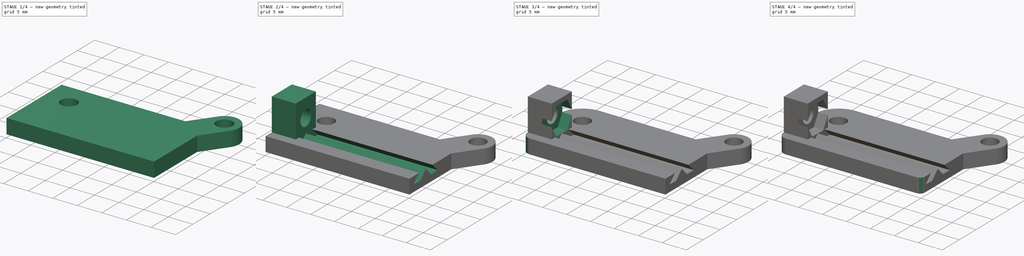
[diagram: build sequence overview — one tinted view per stage of 4, left to right]
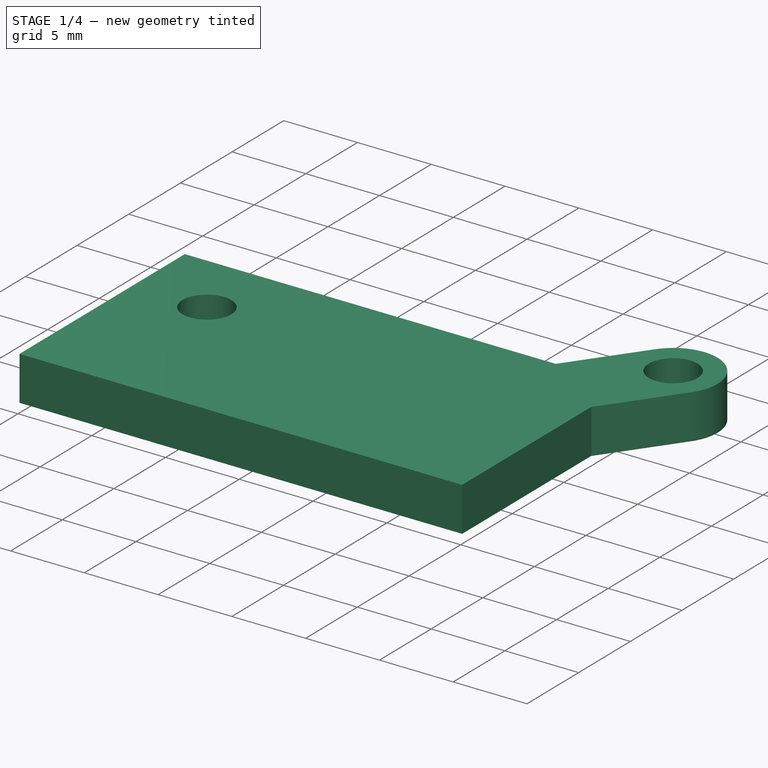
[diagram: stage 1 of 4 — iso view after this stage's code; geometry added in this stage tinted green]
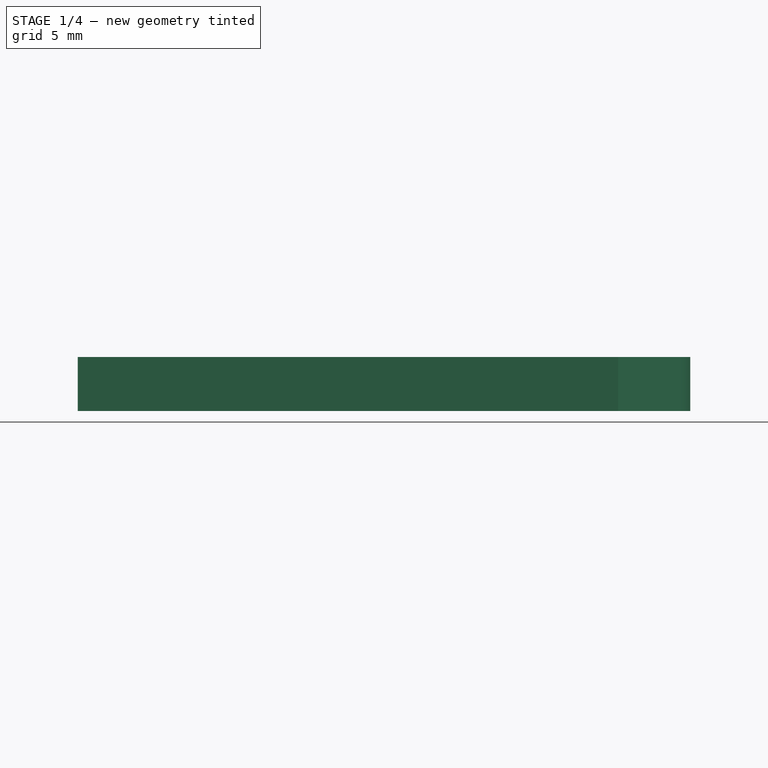
[diagram: stage 1 of 4 — front view after this stage's code; geometry added in this stage tinted green]
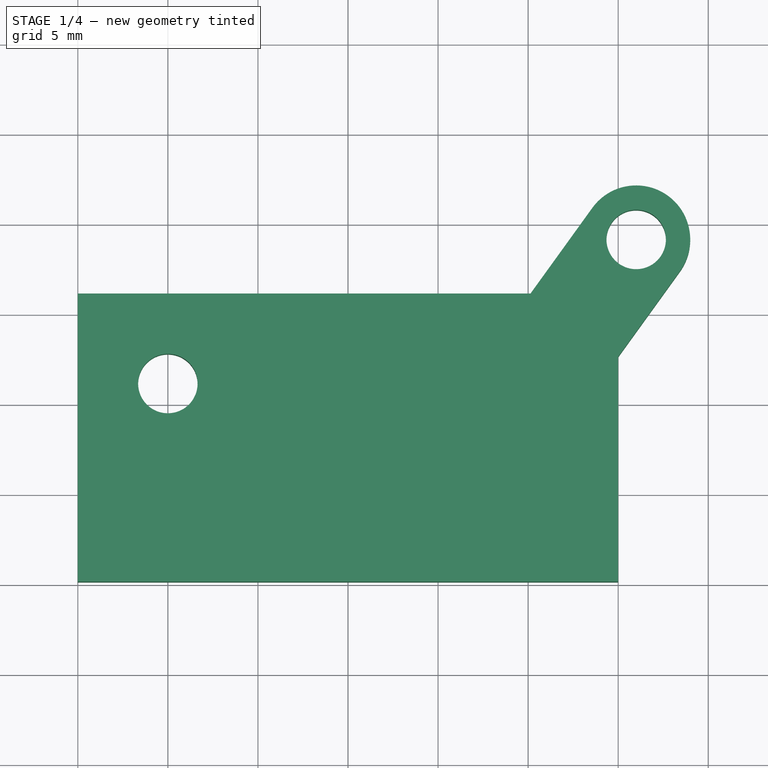
[diagram: stage 1 of 4 — top view after this stage's code; geometry added in this stage tinted green]
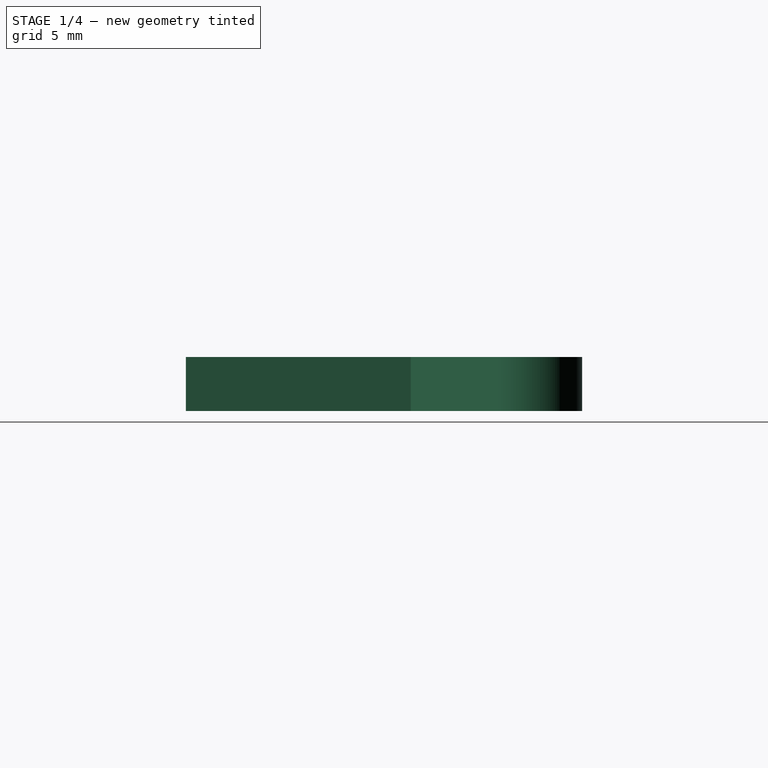
[diagram: stage 1 of 4 — right view after this stage's code; geometry added in this stage tinted green]
FCSTD DOCUMENT  (FreeCAD 0.18R15441 (Git))
Label: ZEndstopClip1
License: All rights reserved
LicenseURL: http://en.wikipedia.org/wiki/All_rights_reserved
objects: Sketcher::SketchObject×6, PartDesign::Pad×3, PartDesign::Pocket×3, PartDesign::Fillet×3, PartDesign::Body×1, Part::FeaturePython×1, App::Part×1
note: 23 computed .brp shape members not serialized (recipe doc carries the construction recipe); baked Part::Feature solids carry a one-line shape summary decoded from their .brp

FEATURE [Sketcher::SketchObject] Sketch  label="BaseSketch1"
  MapMode = 5
  Support = -> [XY_Plane001]
  sketch-geometry (5):
    g0: LineSegment StartX=-5 StartY=11.15 StartZ=0 EndX=25 EndY=11.15 EndZ=0
    g1: LineSegment StartX=25 StartY=11.15 StartZ=0 EndX=25 EndY=-4.85 EndZ=0
    g2: LineSegment StartX=25 StartY=-4.85 StartZ=0 EndX=-5 EndY=-4.85 EndZ=0
    g3: LineSegment StartX=-5 StartY=-4.85 StartZ=0 EndX=-5 EndY=11.15 EndZ=0
    g4: Circle CenterX=0 CenterY=6.15 CenterZ=0 NormalX=0 NormalY=0 NormalZ=1 AngleXU=0 Radius=1.65
  constraints (15):
    c: Coincident(g0,g1)
    c: Coincident(g1,g2)
    c: Coincident(g2,g3)
    c: Coincident(g3,g0)
    c: Horizontal(g0)
    c: Horizontal(g2)
    c: Vertical(g1)
    c: Vertical(g3)
    c: PointOnObject(g4,g-2)
    c: Distance(g-1,g4) = 6.15
    c: Radius(g4) = 1.65
    c: Distance(g4,g3) = 5
    c: Distance(g4,g2) = 11
    c: Distance(g4,g0) = 5
    c: Distance(g0) = 30
FEATURE [Sketcher::SketchObject] Sketch001  label="BaseSketch2"
  ExternalGeometry = -> [Sketch]
  MapMode = 5
  Support = -> [XY_Plane001]
  sketch-geometry (6):
    g0: Circle CenterX=26 CenterY=14.15 CenterZ=0 NormalX=0 NormalY=0 NormalZ=1 AngleXU=0 Radius=1.65
    g1: ArcOfCircle CenterX=26 CenterY=14.15 CenterZ=0 NormalX=0 NormalY=0 NormalZ=1 AngleXU=0 Radius=3 StartAngle=5.658 EndAngle=8.79959
    g2: LineSegment StartX=23.5674 StartY=15.9057 StartZ=0 EndX=20.1349 EndY=11.15 EndZ=0
    g3: LineSegment StartX=28.4326 StartY=12.3943 StartZ=0 EndX=25 EndY=7.6385 EndZ=0
    g4: LineSegment StartX=20.1349 StartY=11.15 StartZ=0 EndX=25 EndY=7.6385 EndZ=0
    g5: LineSegment [constr] StartX=23.5674 StartY=15.9057 StartZ=0 EndX=28.4326 EndY=12.3943 EndZ=0
  constraints (17):
    c: Equal(g0,g-3)
    c: DistanceX(g-3,g0) = 26
    c: DistanceY(g-3,g0) = 8
    c: Coincident(g1,g0)
    c: Coincident(g2,g1)
    c: PointOnObject(g2,g-4)
    c: Coincident(g3,g1)
    c: PointOnObject(g3,g-5)
    c: Coincident(g4,g2)
    c: Coincident(g4,g3)
    c: Perpendicular(g3,g4)
    c: Parallel(g3,g2)
    c: Angle(g1) = 3.14159
    c: Coincident(g5,g1)
    c: Coincident(g5,g1)
    c: Parallel(g5,g4)
    c: Radius(g1) = 3
FEATURE [PartDesign::Pad] Pad  label="BasePad1"
  Length = 3
  Length2 = 100
  Profile = -> Sketch
  Reversed = true
  Type = 0
FEATURE [PartDesign::Pad] Pad001  label="BasePad2"
  BaseFeature = -> Pad
  Length = 3
  Length2 = 100
  Profile = -> Sketch001
  Reversed = true
  Type = 0
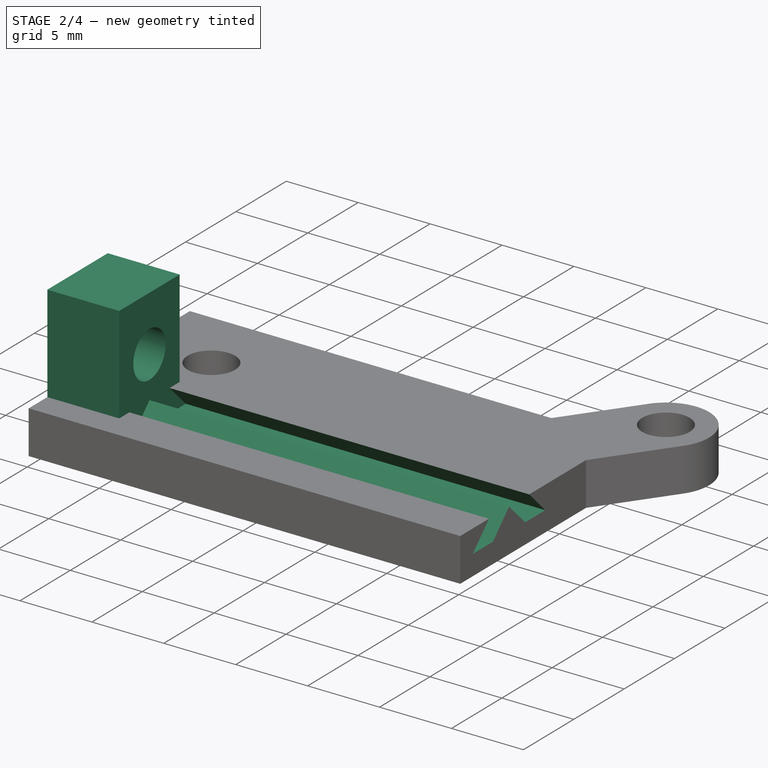
[diagram: stage 2 of 4 — iso view after this stage's code; geometry added in this stage tinted green]
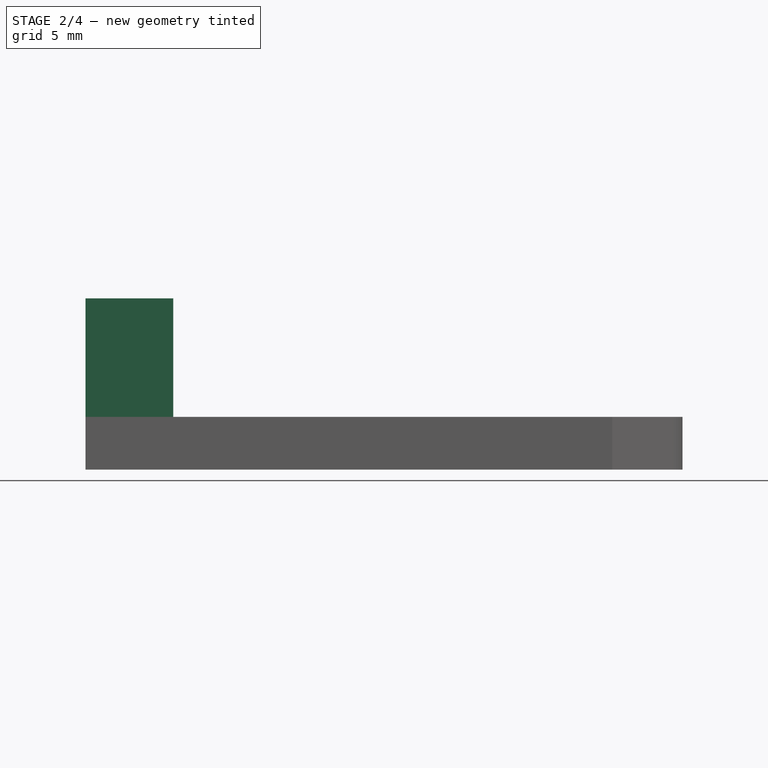
[diagram: stage 2 of 4 — front view after this stage's code; geometry added in this stage tinted green]
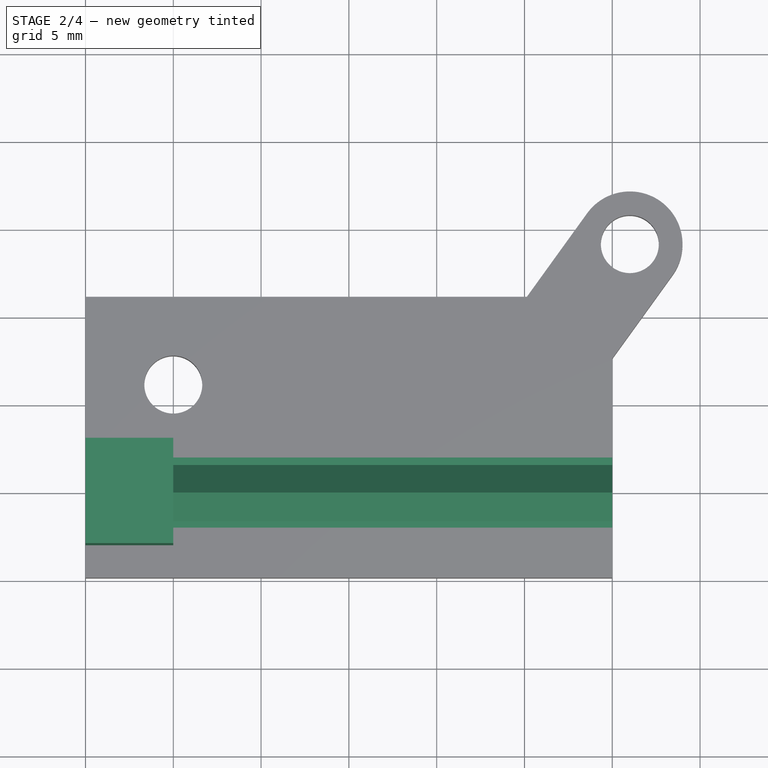
[diagram: stage 2 of 4 — top view after this stage's code; geometry added in this stage tinted green]
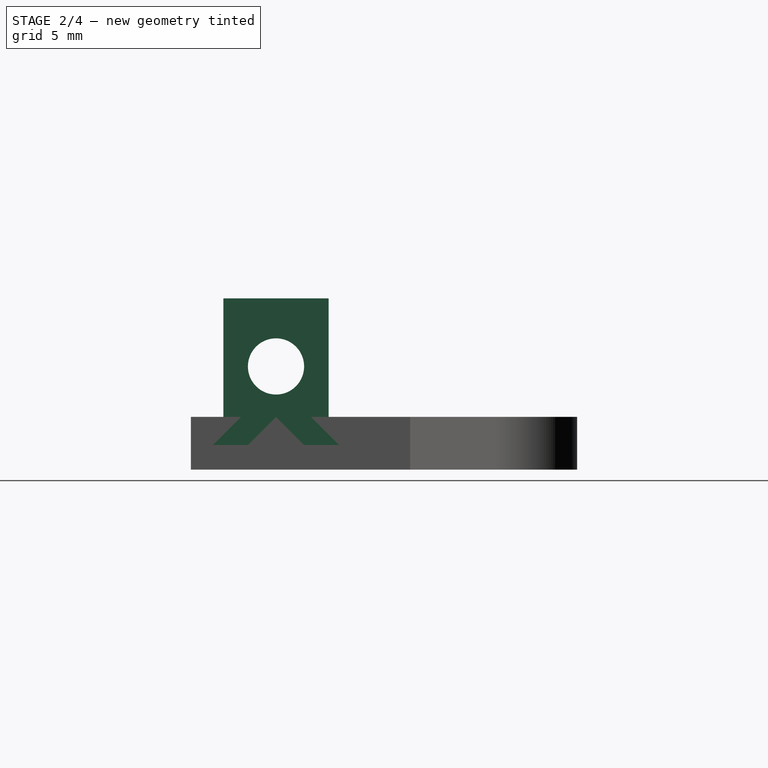
[diagram: stage 2 of 4 — right view after this stage's code; geometry added in this stage tinted green]
FEATURE [Sketcher::SketchObject] Sketch002  label="RailSketch"
  MapMode = 5
  Placement = pos=(0,0,0) rot=(0.57735,0.57735,0.57735;2.0944rad)
  Support = -> [YZ_Plane001]
  sketch-geometry (9):
    g0: LineSegment StartX=2 StartY=0 StartZ=0 EndX=2 EndY=1 EndZ=0
    g1: LineSegment StartX=2 StartY=1 StartZ=0 EndX=-2 EndY=1 EndZ=0
    g2: LineSegment StartX=-2 StartY=1 StartZ=0 EndX=-2 EndY=0 EndZ=0
    g3: LineSegment StartX=-2 StartY=0 StartZ=0 EndX=-3.6 EndY=-1.6 EndZ=0
    g4: LineSegment StartX=-3.6 StartY=-1.6 StartZ=0 EndX=-1.6 EndY=-1.6 EndZ=0
    g5: LineSegment StartX=-1.6 StartY=-1.6 StartZ=0 EndX=0 EndY=0 EndZ=0
    g6: LineSegment StartX=0 StartY=0 StartZ=0 EndX=1.6 EndY=-1.6 EndZ=0
    g7: LineSegment StartX=1.6 StartY=-1.6 StartZ=0 EndX=3.6 EndY=-1.6 EndZ=0
    g8: LineSegment StartX=3.6 StartY=-1.6 StartZ=0 EndX=2 EndY=0 EndZ=0
  constraints (24):
    c: Coincident(g0,g1)
    c: Coincident(g1,g2)
    c: Horizontal(g1)
    c: Vertical(g0)
    c: Vertical(g2)
    c: PointOnObject(g2,g-1)
    c: Symmetric(g2,g0,g-2)
    c: Distance(g2) = 1
    c: Distance(g1) = 4
    c: Coincident(g3,g2)
    c: Coincident(g4,g3)
    c: Horizontal(g4)
    c: Coincident(g5,g4)
    c: Coincident(g5,g-1)
    c: Coincident(g6,g5)
    c: Coincident(g7,g6)
    c: Horizontal(g7)
    c: Coincident(g8,g7)
    c: Coincident(g8,g0)
    c: Parallel(g8,g6)
    c: Parallel(g5,g3)
    c: Angle(g5,g6) = 1.5708
    c: Symmetric(g4,g6,g-2)
    c: Distance(g2,g4) = 1.6
FEATURE [PartDesign::Pocket] Pocket  label="RailPocket"
  BaseFeature = -> Pad001
  Length = 5
  Length2 = 100
  Profile = -> Sketch002
  Reversed = true
  Type = 1
FEATURE [Sketcher::SketchObject] Sketch003  label="NutStopSketch"
  MapMode = 5
  Placement = pos=(0,0,0) rot=(0.57735,0.57735,0.57735;2.0944rad)
  Support = -> [YZ_Plane001]
  sketch-geometry (4):
    g0: LineSegment StartX=-3 StartY=0 StartZ=0 EndX=3 EndY=0 EndZ=0
    g1: LineSegment StartX=3 StartY=0 StartZ=0 EndX=3 EndY=6.75 EndZ=0
    g2: LineSegment StartX=3 StartY=6.75 StartZ=0 EndX=-3 EndY=6.75 EndZ=0
    g3: LineSegment StartX=-3 StartY=6.75 StartZ=0 EndX=-3 EndY=0 EndZ=0
  constraints (11):
    c: Coincident(g0,g1)
    c: Coincident(g1,g2)
    c: Coincident(g2,g3)
    c: Coincident(g3,g0)
    c: Horizontal(g2)
    c: Vertical(g1)
    c: Vertical(g3)
    c: PointOnObject(g0,g-1)
    c: Symmetric(g0,g0,g-2)
    c: Distance(g2) = 6
    c: Distance(g3) = 6.75
FEATURE [PartDesign::Pad] Pad002  label="NutStopPad"
  BaseFeature = -> Pocket
  Length = 5
  Length2 = 100
  Profile = -> Sketch003
  Reversed = true
  Type = 0
FEATURE [Sketcher::SketchObject] Sketch004  label="ScrewHoleSketch"
  MapMode = 5
  Placement = pos=(0,0,0) rot=(0.57735,0.57735,0.57735;2.0944rad)
  Support = -> [YZ_Plane001]
  sketch-geometry (1):
    g0: Circle CenterX=0 CenterY=2.875 CenterZ=0 NormalX=0 NormalY=0 NormalZ=1 AngleXU=0 Radius=1.6
  constraints (3):
    c: PointOnObject(g0,g-2)
    c: Radius(g0) = 1.6
    c: DistanceY(g-1,g0) = 2.875
FEATURE [PartDesign::Pocket] Pocket001  label="ScrewHolePocket"
  BaseFeature = -> Pad002
  Length = 5
  Length2 = 100
  Profile = -> Sketch004
  Type = 1
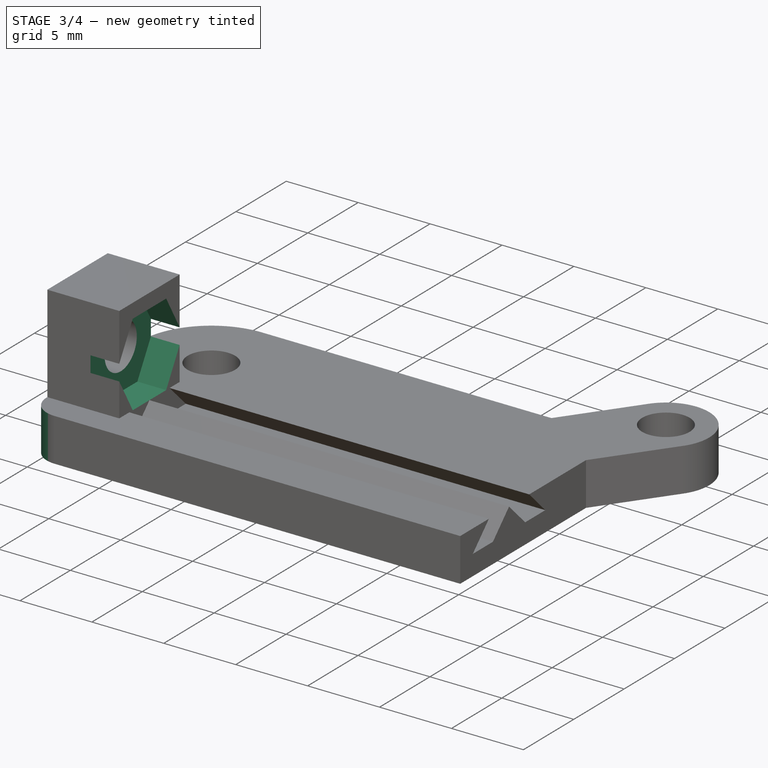
[diagram: stage 3 of 4 — iso view after this stage's code; geometry added in this stage tinted green]
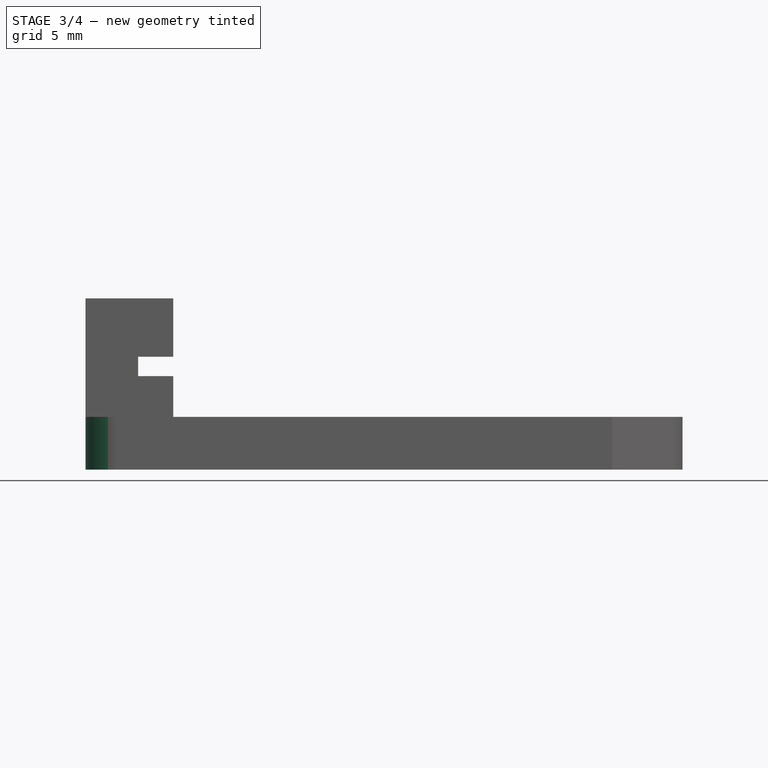
[diagram: stage 3 of 4 — front view after this stage's code; geometry added in this stage tinted green]
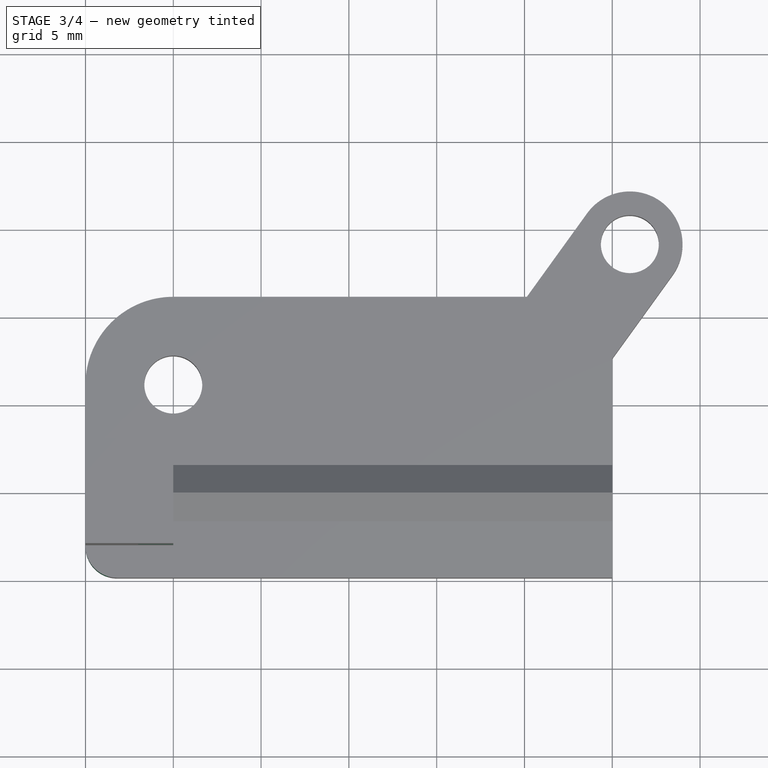
[diagram: stage 3 of 4 — top view after this stage's code; geometry added in this stage tinted green]
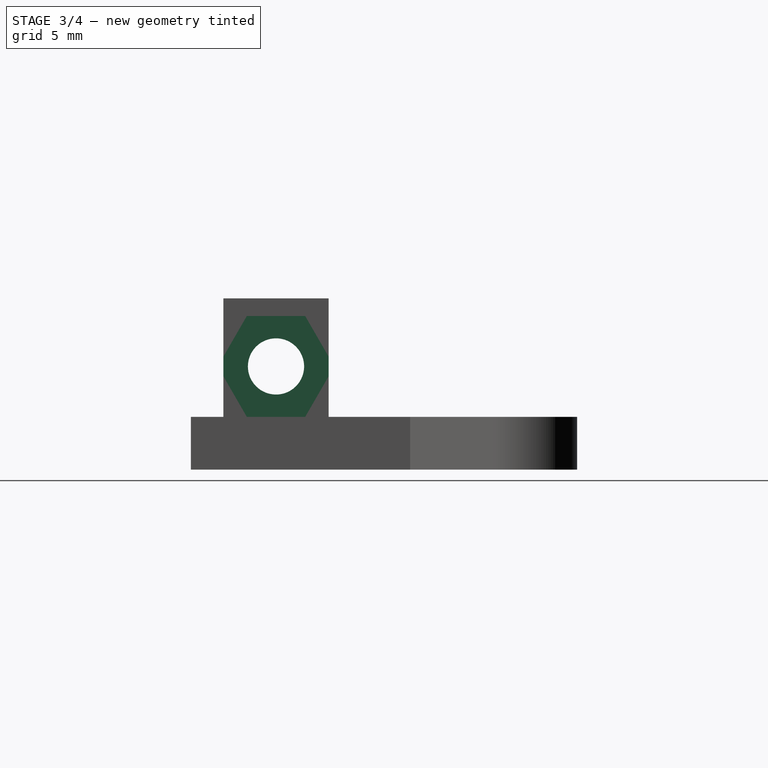
[diagram: stage 3 of 4 — right view after this stage's code; geometry added in this stage tinted green]
FEATURE [Sketcher::SketchObject] Sketch005  label="NutSketch"
  ExternalGeometry = -> [Sketch004]
  MapMode = 5
  Placement = pos=(0,0,0) rot=(0.57735,0.57735,0.57735;2.0944rad)
  Support = -> [YZ_Plane001]
  sketch-geometry (7):
    g0: LineSegment StartX=-3.31976 StartY=2.875 StartZ=0 EndX=-1.65988 EndY=2.2e-15 EndZ=0
    g1: LineSegment StartX=-1.65988 StartY=2.4e-15 StartZ=0 EndX=1.65988 EndY=-2.3e-15 EndZ=0
    g2: LineSegment StartX=1.65988 StartY=-2.3e-15 StartZ=0 EndX=3.31976 EndY=2.875 EndZ=0
    g3: LineSegment StartX=3.31976 StartY=2.875 StartZ=0 EndX=1.65988 EndY=5.75 EndZ=0
    g4: LineSegment StartX=1.65988 StartY=5.75 StartZ=0 EndX=-1.65988 EndY=5.75 EndZ=0
    g5: LineSegment StartX=-1.65988 StartY=5.75 StartZ=0 EndX=-3.31976 EndY=2.875 EndZ=0
    g6: Circle [constr] CenterX=3e-16 CenterY=2.875 CenterZ=0 NormalX=0 NormalY=0 NormalZ=1 AngleXU=0 Radius=3.31976
  constraints (16):
    c: Coincident(g0,g1)
    c: Coincident(g1,g2)
    c: Coincident(g2,g3)
    c: Coincident(g3,g4)
    c: Coincident(g4,g5)
    c: Coincident(g5,g0)
    c: Equal(g0, g1-g5) x5
    c: PointOnObject(g0,g6)
    c: PointOnObject(g1,g6)
    c: PointOnObject(g2,g6)
    c: PointOnObject(g3,g6)
    c: PointOnObject(g4,g6)
    c: PointOnObject(g5,g6)
    c: Coincident(g6,g-3)
    c: Horizontal(g4)
    c: Distance(g0,g4) = 5.75
FEATURE [PartDesign::Pocket] Pocket002  label="NutPocket"
  BaseFeature = -> Pocket001
  Length = 2
  Length2 = 100
  Profile = -> Sketch005
  Type = 0
FEATURE [PartDesign::Fillet] Fillet  label="CornersFillet1"
  Base = -> Pocket002 [Edge20]
  BaseFeature = -> Pocket002
  Radius = 1.8
FEATURE [PartDesign::Fillet] Fillet001  label="CornersFillet2"
  Base = -> Fillet [Edge12]
  BaseFeature = -> Fillet
  Radius = 5
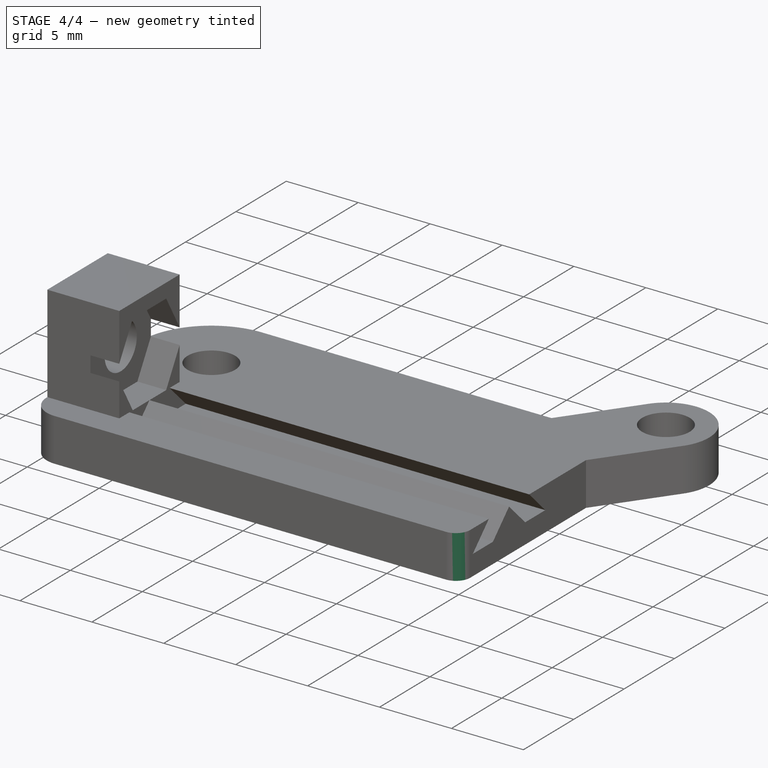
[diagram: stage 4 of 4 — iso view after this stage's code; geometry added in this stage tinted green]
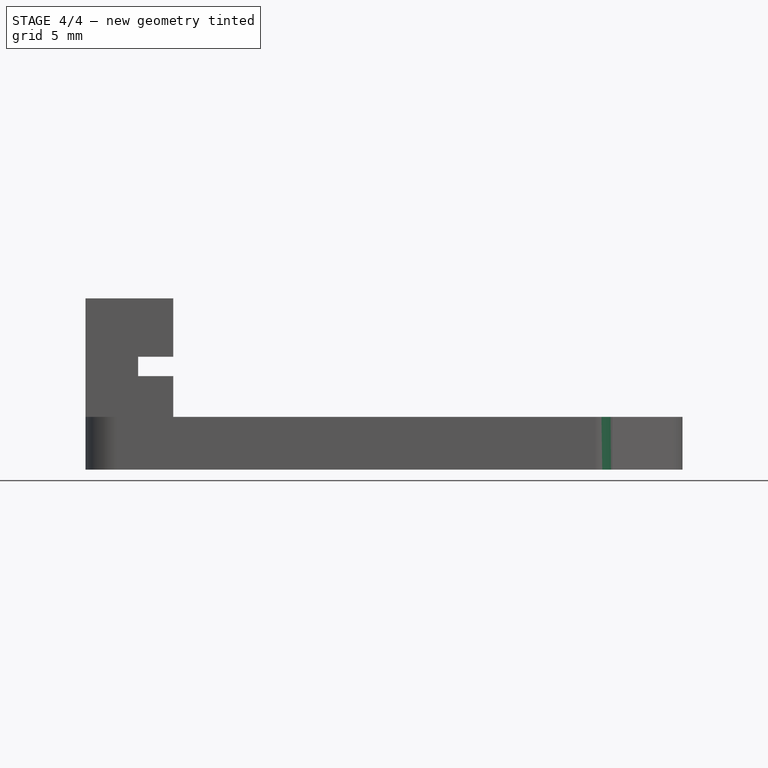
[diagram: stage 4 of 4 — front view after this stage's code; geometry added in this stage tinted green]
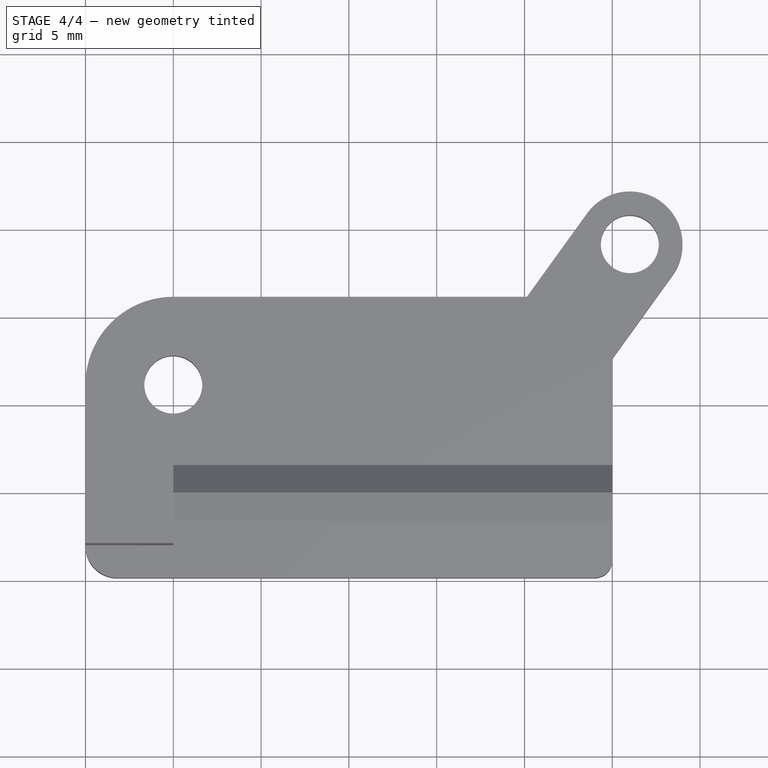
[diagram: stage 4 of 4 — top view after this stage's code; geometry added in this stage tinted green]
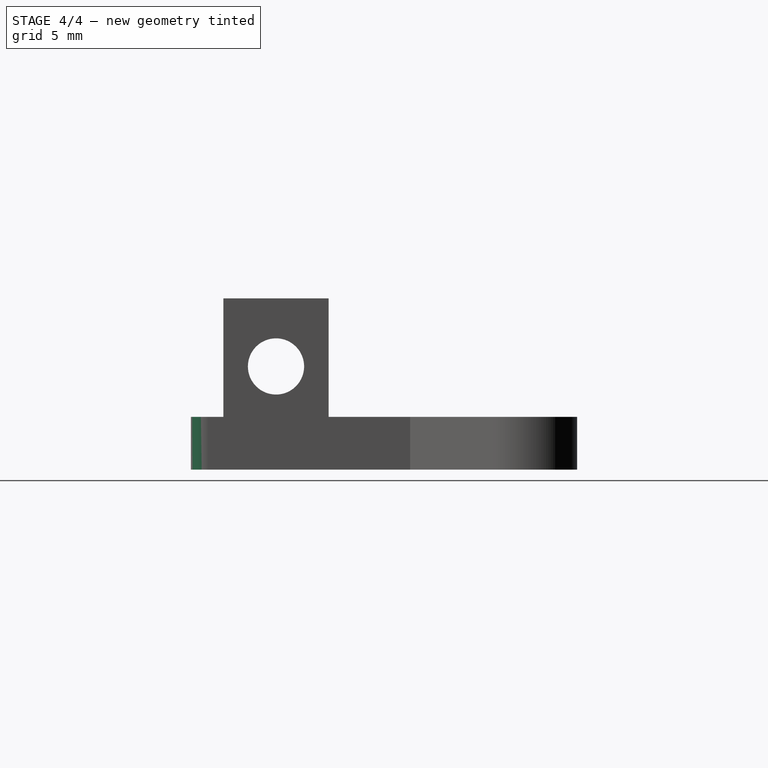
[diagram: stage 4 of 4 — right view after this stage's code; geometry added in this stage tinted green]
FEATURE [PartDesign::Fillet] Fillet002  label="CornersFillet3"
  Base = -> Fillet001 [Edge21]
  BaseFeature = -> Fillet001
  Radius = 1
FEATURE [PartDesign::Body] Body  label="ClipBody"
  Group = -> [Sketch,Sketch001,Pad,Pad001,Sketch002,Pocket,Sketch003,Pad002,Sketch004,Pocket001,Sketch005,Pocket002,Fillet,Fillet001,Fillet002]
  Origin = -> Origin001
  Tip = -> Fillet002
FEATURE [Part::FeaturePython] refine  label="ClipBody_Refined"  # WARN: FeaturePython — macro-defined, semantics opaque (R4)
  Base = -> Body
FEATURE [App::Part] Part  label="Clip1Part"
  Group = -> [Body,refine]
  License = CC BY 3.0
  LicenseURL = http://creativecommons.org/licenses/by/3.0/
  Origin = -> Origin
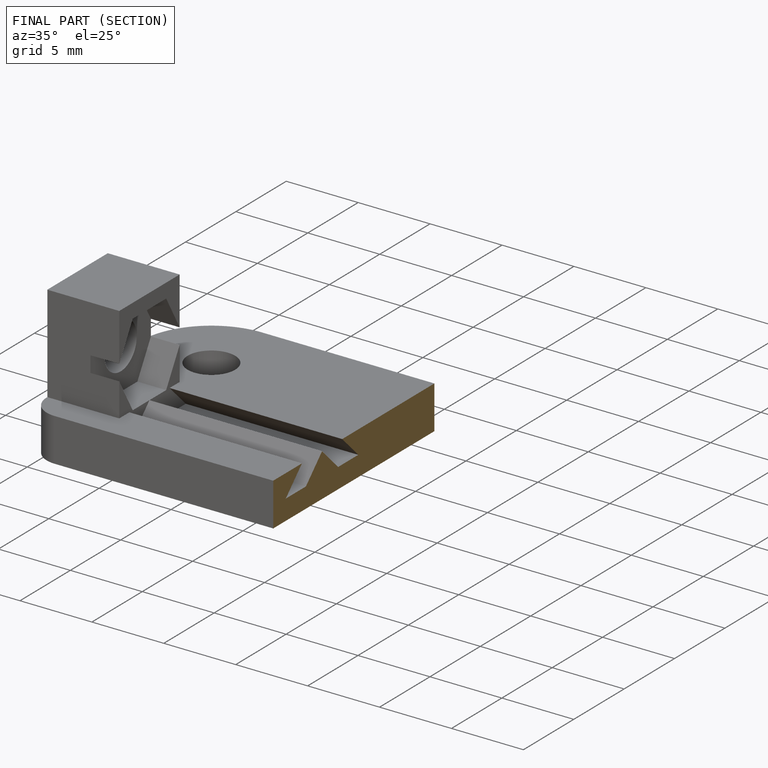
[diagram: finished part — half-section view (interior)]
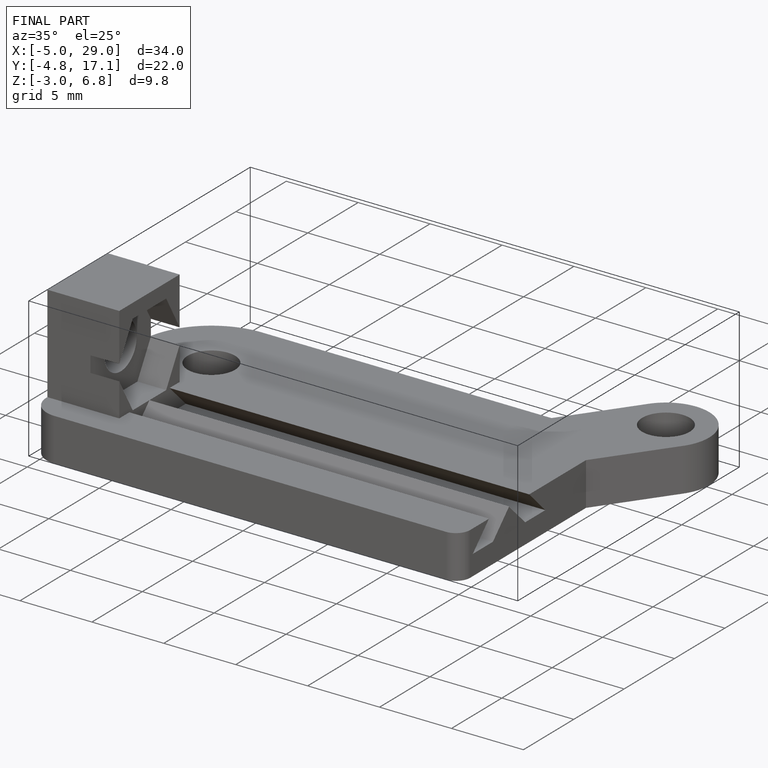
[diagram: finished part — iso view with bounding-box wireframe]
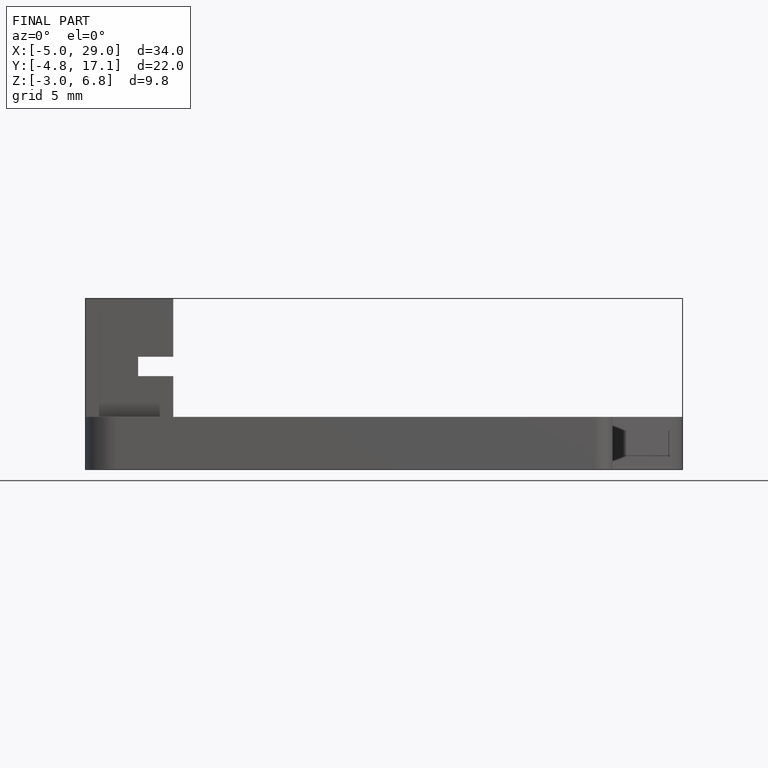
[diagram: finished part — front view with bounding-box wireframe]
